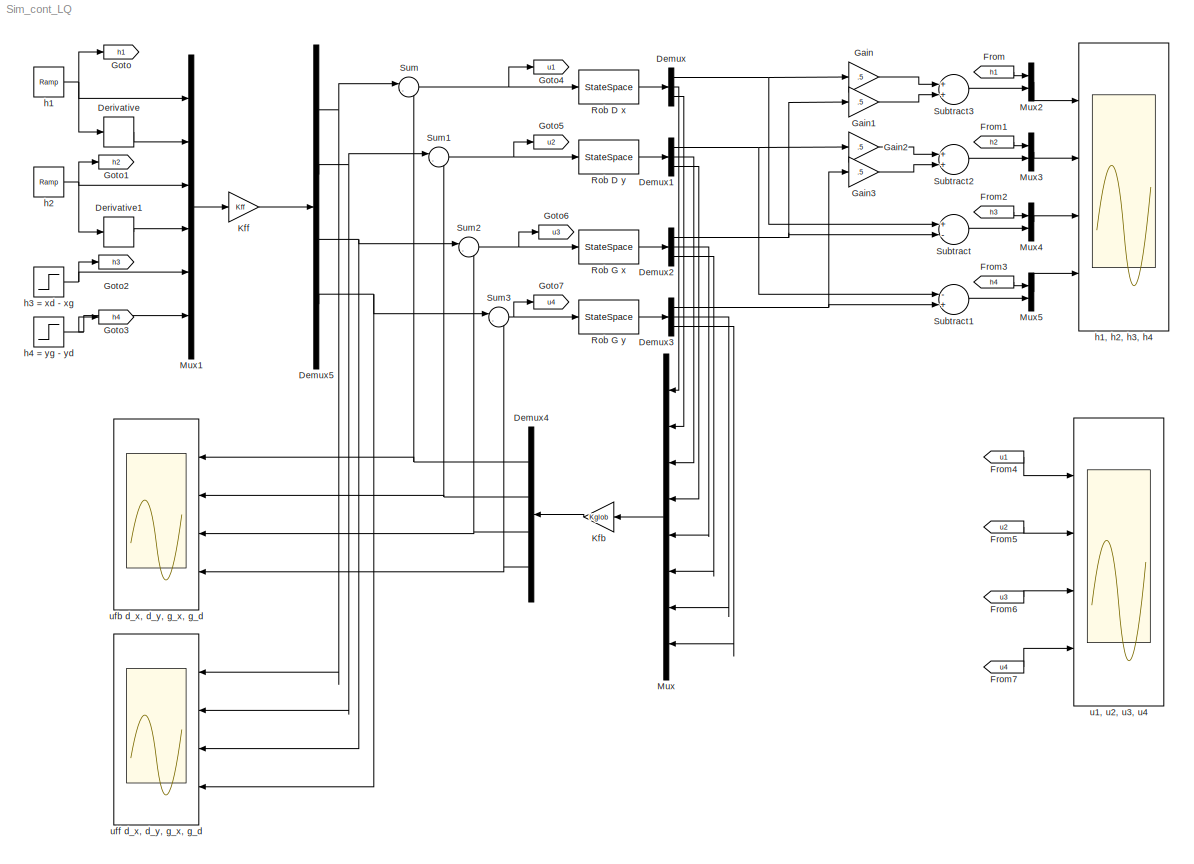
MODEL Sim_cont_LQ
KIND model
BLOCK [Demux] Demux
  DisplayOption = bar
  Outputs = 3
  Ports = [1, 3]
  SID = 13
BLOCK [Demux] Demux1
  DisplayOption = bar
  Outputs = 3
  Ports = [1, 3]
  SID = 15
BLOCK [Demux] Demux2
  DisplayOption = bar
  Outputs = 3
  Ports = [1, 3]
  SID = 16
BLOCK [Demux] Demux3
  DisplayOption = bar
  Outputs = 3
  Ports = [1, 3]
  SID = 17
BLOCK [Demux] Demux4
  DisplayOption = bar
  Ports = [1, 4]
  SID = 23
BLOCK [Demux] Demux5
  DisplayOption = bar
  Ports = [1, 4]
  SID = 29
BLOCK [Derivative] Derivative
  SID = 37
BLOCK [Derivative] Derivative1
  SID = 38
BLOCK [From] From
  GotoTag = h1
  SID = 49
BLOCK [From] From1
  GotoTag = h2
  SID = 50
BLOCK [From] From2
  GotoTag = h3
  SID = 51
BLOCK [From] From3
  GotoTag = h4
  SID = 52
BLOCK [From] From4
  GotoTag = u1
  SID = 67
BLOCK [From] From5
  GotoTag = u2
  SID = 68
BLOCK [From] From6
  GotoTag = u3
  SID = 69
BLOCK [From] From7
  GotoTag = u4
  SID = 70
BLOCK [Gain] Gain
  Gain = .5
  OutDataType = fixdt(1, 16)
  OutDataTypeMode = Inherit via internal rule
  OutDataTypeStr = Inherit: Inherit via internal rule
  OutScaling = 2^0
  ParamDataTypeStr = Inherit: Inherit via internal rule
  ParameterDataType = fixdt(1, 16)
  ParameterDataTypeMode = Inherit via internal rule
  ParameterScaling = 2^0
  SID = 3
  SaturateOnIntegerOverflow = off
BLOCK [Gain] Gain1
  Gain = .5
  OutDataType = fixdt(1, 16)
  OutDataTypeMode = Inherit via internal rule
  OutDataTypeStr = Inherit: Inherit via internal rule
  OutScaling = 2^0
  ParamDataTypeStr = Inherit: Inherit via internal rule
  ParameterDataType = fixdt(1, 16)
  ParameterDataTypeMode = Inherit via internal rule
  ParameterScaling = 2^0
  SID = 10
  SaturateOnIntegerOverflow = off
BLOCK [Gain] Gain2
  Gain = .5
  OutDataType = fixdt(1, 16)
  OutDataTypeMode = Inherit via internal rule
  OutDataTypeStr = Inherit: Inherit via internal rule
  OutScaling = 2^0
  ParamDataTypeStr = Inherit: Inherit via internal rule
  ParameterDataType = fixdt(1, 16)
  ParameterDataTypeMode = Inherit via internal rule
  ParameterScaling = 2^0
  SID = 18
  SaturateOnIntegerOverflow = off
BLOCK [Gain] Gain3
  Gain = .5
  OutDataType = fixdt(1, 16)
  OutDataTypeMode = Inherit via internal rule
  OutDataTypeStr = Inherit: Inherit via internal rule
  OutScaling = 2^0
  ParamDataTypeStr = Inherit: Inherit via internal rule
  ParameterDataType = fixdt(1, 16)
  ParameterDataTypeMode = Inherit via internal rule
  ParameterScaling = 2^0
  SID = 19
  SaturateOnIntegerOverflow = off
BLOCK [Goto] Goto
  GotoTag = h1
  SID = 45
  TagVisibility = local
BLOCK [Goto] Goto1
  GotoTag = h2
  SID = 46
  TagVisibility = local
BLOCK [Goto] Goto2
  GotoTag = h3
  SID = 47
  TagVisibility = local
BLOCK [Goto] Goto3
  GotoTag = h4
  SID = 48
  TagVisibility = local
BLOCK [Goto] Goto4
  GotoTag = u1
  SID = 53
  TagVisibility = local
BLOCK [Goto] Goto5
  GotoTag = u2
  SID = 54
  TagVisibility = local
BLOCK [Goto] Goto6
  GotoTag = u3
  SID = 55
  TagVisibility = local
BLOCK [Goto] Goto7
  GotoTag = u4
  SID = 56
  TagVisibility = local
BLOCK [Gain] Kfb
  Gain = Kglob
  Multiplication = Matrix(K*u)
  OutDataType = fixdt(1, 16)
  OutDataTypeMode = Inherit via internal rule
  OutDataTypeStr = Inherit: Inherit via internal rule
  OutScaling = 2^0
  ParamDataTypeStr = Inherit: Inherit via internal rule
  ParameterDataType = fixdt(1, 16)
  ParameterDataTypeMode = Inherit via internal rule
  ParameterScaling = 2^0
  SID = 22
  SaturateOnIntegerOverflow = off
BLOCK [Gain] Kff
  Gain = Kff
  Multiplication = Matrix(K*u)
  OutDataType = fixdt(1, 16)
  OutDataTypeMode = Inherit via internal rule
  OutDataTypeStr = Inherit: Inherit via internal rule
  OutScaling = 2^0
  ParamDataTypeStr = Inherit: Inherit via internal rule
  ParameterDataType = fixdt(1, 16)
  ParameterDataTypeMode = Inherit via internal rule
  ParameterScaling = 2^0
  SID = 28
  SaturateOnIntegerOverflow = off
BLOCK [Mux] Mux
  DisplayOption = bar
  Inputs = 8
  Ports = [8, 1]
  SID = 21
BLOCK [Mux] Mux1
  DisplayOption = bar
  Inputs = 6
  Ports = [6, 1]
  SID = 30
BLOCK [Mux] Mux2
  DisplayOption = bar
  Inputs = 2
  Ports = [2, 1]
  SID = 40
BLOCK [Mux] Mux3
  DisplayOption = bar
  Inputs = 2
  Ports = [2, 1]
  SID = 42
BLOCK [Mux] Mux4
  DisplayOption = bar
  Inputs = 2
  Ports = [2, 1]
  SID = 43
BLOCK [Mux] Mux5
  DisplayOption = bar
  Inputs = 2
  Ports = [2, 1]
  SID = 44
BLOCK [StateSpace] Rob D x 
  A = Adr
  B = Bdr
  C = Cdr
  D = Ddr
  SID = 72
BLOCK [StateSpace] Rob D y
  A = Adr
  B = Bdr
  C = Cdr
  D = Ddr
  SID = 73
BLOCK [StateSpace] Rob G x
  A = Adr
  B = Bdr
  C = Cdr
  D = Ddr
  SID = 74
BLOCK [StateSpace] Rob G y
  A = Adr
  B = Bdr
  C = Cdr
  D = Ddr
  SID = 75
BLOCK [Sum] Subtract
  InputSameDT = off
  Inputs = +-
  OutDataType = fixdt(1, 16)
  OutDataTypeMode = Inherit via internal rule
  OutDataTypeStr = Inherit: Inherit via internal rule
  OutScaling = 2^-10
  Ports = [2, 1]
  SID = 4
  SaturateOnIntegerOverflow = off
BLOCK [Sum] Subtract1
  InputSameDT = off
  Inputs = -+
  OutDataType = fixdt(1, 16)
  OutDataTypeMode = Inherit via internal rule
  OutDataTypeStr = Inherit: Inherit via internal rule
  OutScaling = 2^-10
  Ports = [2, 1]
  SID = 5
  SaturateOnIntegerOverflow = off
BLOCK [Sum] Subtract2
  InputSameDT = off
  OutDataType = fixdt(1, 16)
  OutDataTypeMode = Inherit via internal rule
  OutDataTypeStr = Inherit: Inherit via internal rule
  OutScaling = 2^-10
  Ports = [2, 1]
  SID = 6
  SaturateOnIntegerOverflow = off
BLOCK [Sum] Subtract3
  InputSameDT = off
  OutDataType = fixdt(1, 16)
  OutDataTypeMode = Inherit via internal rule
  OutDataTypeStr = Inherit: Inherit via internal rule
  OutScaling = 2^-10
  Ports = [2, 1]
  SID = 7
  SaturateOnIntegerOverflow = off
BLOCK [Sum] Sum
  IconShape = round
  InputSameDT = off
  Inputs = |--
  OutDataType = fixdt(1, 16)
  OutDataTypeMode = Inherit via internal rule
  OutDataTypeStr = Inherit: Inherit via internal rule
  OutScaling = 2^0
  Ports = [2, 1]
  SID = 24
  SaturateOnIntegerOverflow = off
BLOCK [Sum] Sum1
  IconShape = round
  InputSameDT = off
  Inputs = |--
  OutDataType = fixdt(1, 16)
  OutDataTypeMode = Inherit via internal rule
  OutDataTypeStr = Inherit: Inherit via internal rule
  OutScaling = 2^0
  Ports = [2, 1]
  SID = 25
  SaturateOnIntegerOverflow = off
BLOCK [Sum] Sum2
  IconShape = round
  InputSameDT = off
  Inputs = |--
  OutDataType = fixdt(1, 16)
  OutDataTypeMode = Inherit via internal rule
  OutDataTypeStr = Inherit: Inherit via internal rule
  OutScaling = 2^0
  Ports = [2, 1]
  SID = 26
  SaturateOnIntegerOverflow = off
BLOCK [Sum] Sum3
  IconShape = round
  InputSameDT = off
  Inputs = |--
  OutDataType = fixdt(1, 16)
  OutDataTypeMode = Inherit via internal rule
  OutDataTypeStr = Inherit: Inherit via internal rule
  OutScaling = 2^0
  Ports = [2, 1]
  SID = 27
  SaturateOnIntegerOverflow = off
BLOCK [Reference] h1  REF=simulink/Sources/Ramp
  FunctionWithSeparateData = off
  Ports = [0, 1]
  RTWMemSecDataConstants = Inherit from model
  RTWMemSecDataInternal = Inherit from model
  RTWMemSecDataParameters = Inherit from model
  RTWMemSecFuncExecute = Inherit from model
  RTWMemSecFuncInitTerm = Inherit from model
  SID = 35
  ShowPortLabels = FromPortIcon
  SourceBlock = simulink/Sources/Ramp
  SourceType = Ramp
  SystemSampleTime = -1
  VectorParams1D = on
  X0 = 0
  slope = 1
  start = 1
BLOCK [Scope] h1, h2, h3, h4
  DataFormat = StructureWithTime
  Floating = off
  LimitDataPoints = off
  NumInputPorts = 4
  Ports = [4]
  SID = 20
  SampleTime = 0
  YMax = 5~5~5~5
  YMin = -5~-5~-5~-5
BLOCK [Reference] h2  REF=simulink/Sources/Ramp
  FunctionWithSeparateData = off
  Ports = [0, 1]
  RTWMemSecDataConstants = Inherit from model
  RTWMemSecDataInternal = Inherit from model
  RTWMemSecDataParameters = Inherit from model
  RTWMemSecFuncExecute = Inherit from model
  RTWMemSecFuncInitTerm = Inherit from model
  SID = 36
  ShowPortLabels = FromPortIcon
  SourceBlock = simulink/Sources/Ramp
  SourceType = Ramp
  SystemSampleTime = -1
  VectorParams1D = on
  X0 = 0
  slope = 1
  start = 3
BLOCK [Step] h3 = xd - xg
  SID = 31
  SampleTime = 0
  Time = 5
BLOCK [Step] h4 = yg - yd
  SID = 32
  SampleTime = 0
  Time = 7
BLOCK [Scope] u1, u2, u3, u4
  DataFormat = StructureWithTime
  Floating = off
  LimitDataPoints = off
  NumInputPorts = 4
  Ports = [4]
  SID = 71
  SampleTime = 0
  SaveName = ScopeData3
  YMax = 5~5~5~5
  YMin = -5~-5~-5~-5
BLOCK [Scope] ufb d_x, d_y, g_x, g_d
  DataFormat = StructureWithTime
  Floating = off
  LimitDataPoints = off
  NumInputPorts = 4
  Ports = [4]
  SID = 33
  SampleTime = 0
  SaveName = ScopeData1
  YMax = 5~5~5~5
  YMin = -5~-5~-5~-5
BLOCK [Scope] uff d_x, d_y, g_x, g_d
  DataFormat = StructureWithTime
  Floating = off
  LimitDataPoints = off
  NumInputPorts = 4
  Ports = [4]
  SID = 34
  SampleTime = 0
  SaveName = ScopeData2
  YMax = 5~5~5~5
  YMin = -5~-5~-5~-5
  ZoomMode = yonly
NET Demux1:1 -> Gain2:1, Subtract1:1
LINE Demux1:2 -> Mux:3
LINE Demux1:3 -> Mux:4
NET Demux2:1 -> Gain1:1, Subtract:2
LINE Demux2:2 -> Mux:5
LINE Demux2:3 -> Mux:6
NET Demux3:1 -> Gain3:1, Subtract1:2
LINE Demux3:2 -> Mux:7
LINE Demux3:3 -> Mux:8
NET Demux4:1 -> Sum:2, ufb d_x, d_y, g_x, g_d:1
NET Demux4:2 -> Sum1:2, ufb d_x, d_y, g_x, g_d:2
NET Demux4:3 -> Sum2:2, ufb d_x, d_y, g_x, g_d:3
NET Demux4:4 -> Sum3:2, ufb d_x, d_y, g_x, g_d:4
NET Demux5:1 -> Sum:1, uff d_x, d_y, g_x, g_d:1
NET Demux5:2 -> Sum1:1, uff d_x, d_y, g_x, g_d:2
NET Demux5:3 -> Sum2:1, uff d_x, d_y, g_x, g_d:3
NET Demux5:4 -> Sum3:1, uff d_x, d_y, g_x, g_d:4
NET Demux:1 -> Gain:1, Subtract:1
LINE Demux:2 -> Mux:1
LINE Demux:3 -> Mux:2
LINE Derivative1:1 -> Mux1:4
LINE Derivative:1 -> Mux1:2
LINE From1:1 -> Mux3:1
LINE From2:1 -> Mux4:1
LINE From3:1 -> Mux5:1
LINE From4:1 -> u1, u2, u3, u4:1
LINE From5:1 -> u1, u2, u3, u4:2
LINE From6:1 -> u1, u2, u3, u4:3
LINE From7:1 -> u1, u2, u3, u4:4
LINE From:1 -> Mux2:1
LINE Gain1:1 -> Subtract3:2
LINE Gain2:1 -> Subtract2:1
LINE Gain3:1 -> Subtract2:2
LINE Gain:1 -> Subtract3:1
LINE Kfb:1 -> Demux4:1
LINE Kff:1 -> Demux5:1
LINE Mux1:1 -> Kff:1
LINE Mux2:1 -> h1, h2, h3, h4:1
LINE Mux3:1 -> h1, h2, h3, h4:2
LINE Mux4:1 -> h1, h2, h3, h4:3
LINE Mux5:1 -> h1, h2, h3, h4:4
LINE Mux:1 -> Kfb:1
LINE Rob D x :1 -> Demux:1
LINE Rob D y:1 -> Demux1:1
LINE Rob G x:1 -> Demux2:1
LINE Rob G y:1 -> Demux3:1
LINE Subtract1:1 -> Mux5:2
LINE Subtract2:1 -> Mux3:2
LINE Subtract3:1 -> Mux2:2
LINE Subtract:1 -> Mux4:2
NET Sum1:1 -> Goto5:1, Rob D y:1
NET Sum2:1 -> Goto6:1, Rob G x:1
NET Sum3:1 -> Goto7:1, Rob G y:1
NET Sum:1 -> Goto4:1, Rob D x :1
NET h1:1 -> Derivative:1, Goto:1, Mux1:1
NET h2:1 -> Derivative1:1, Goto1:1, Mux1:3
NET h3 = xd - xg:1 -> Goto2:1, Mux1:5
NET h4 = yg - yd:1 -> Goto3:1, Mux1:6
note: NET lines group one-source signal fan-out (src -> all destinations, sorted); 1:1 wires keep LINE
